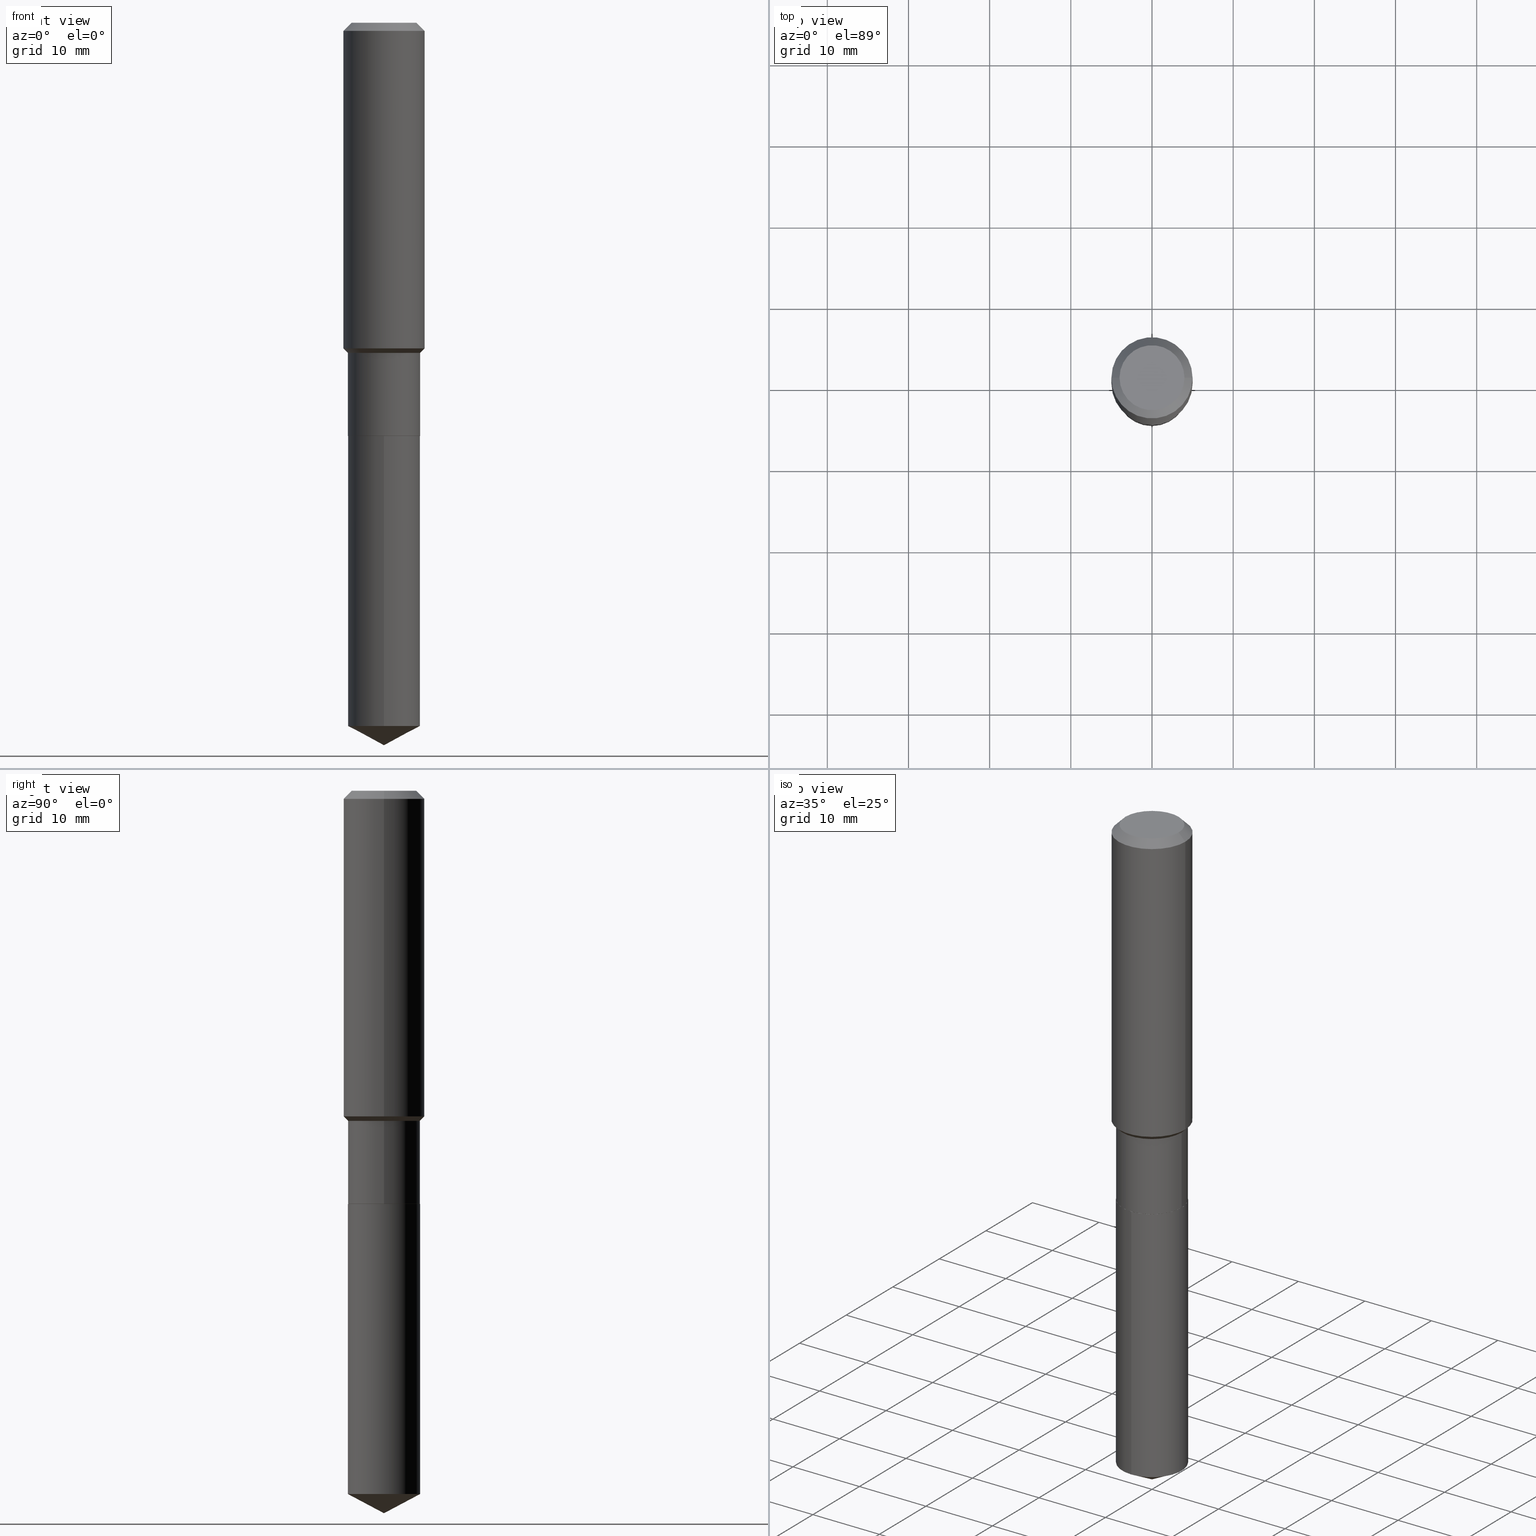
[diagram: canonical four-view strip — front | top / right | iso, engineering-drawing reading convention]
A machine part, canonical four-view strip (front | top / right | iso — engineering-drawing reading convention). The complete STEP part file that produces these views, byte-faithful:
ISO-10303-21;
HEADER;
FILE_DESCRIPTION (( 'STEP AP203' ),
    '1' );
FILE_NAME ('67659.STEP',
    '2024-04-25T08:35:35',
    ( '' ),
    ( '' ),
    'SwSTEP 2.0',
    'SolidWorks 2023',
    '' );
FILE_SCHEMA (( 'CONFIG_CONTROL_DESIGN' ));
ENDSEC;

DATA;
#1 = AXIS2_PLACEMENT_3D ( 'NONE', #430, #395, #51 ) ;
#2 = ORIENTED_EDGE ( 'NONE', *, *, #288, .T. ) ;
#3 = EDGE_CURVE ( 'NONE', #490, #112, #452, .T. ) ;
#4 = LINE ( 'NONE', #88, #188 ) ;
#5 = CC_DESIGN_PERSON_AND_ORGANIZATION_ASSIGNMENT ( #37, #360, ( #376 ) ) ;
#6 = CIRCLE ( 'NONE', #155, 0.1751999999999999946 ) ;
#7 = CIRCLE ( 'NONE', #177, 0.1968500000000002192 ) ;
#8 = DIRECTION ( 'NONE',  ( -6.982962677686265133E-15, -1.000000000000000000, 3.118547937972903315E-15 ) ) ;
#9 = SECURITY_CLASSIFICATION_LEVEL ( 'unclassified' ) ;
#10 = CARTESIAN_POINT ( 'NONE',  ( 4.899252206311301777E-29, -6.994833714238356601E-15, -2.003399999999999626 ) ) ;
#11 = EDGE_CURVE ( 'NONE', #361, #326, #307, .T. ) ;
#12 = ORIENTED_EDGE ( 'NONE', *, *, #75, .T. ) ;
#13 = CIRCLE ( 'NONE', #315, 0.1968500000000000250 ) ;
#14 = CARTESIAN_POINT ( 'NONE',  ( 1.244870873051744200E-15, 0.1751999999999929725, -2.003900000000000237 ) ) ;
#15 = APPROVAL_STATUS ( 'not_yet_approved' ) ;
#16 = DIRECTION ( 'NONE',  ( -2.445468806185136877E-29, 3.491481338843145188E-15, 1.000000000000000000 ) ) ;
#17 = EDGE_CURVE ( 'NONE', #228, #244, #417, .T. ) ;
#18 = DIRECTION ( 'NONE',  ( 1.000000000000000000, -6.982962677686265922E-15, 0.000000000000000000 ) ) ;
#19 = DIRECTION ( 'NONE',  ( 6.982962677686265922E-15, 1.000000000000000000, -3.491412619654568844E-15 ) ) ;
#20 = FACE_OUTER_BOUND ( 'NONE', #138, .T. ) ;
#21 = DIRECTION ( 'NONE',  ( -2.445516792538043674E-29, 3.491412619654569238E-15, 1.000000000000000000 ) ) ;
#22 = VERTEX_POINT ( 'NONE', #301 ) ;
#23 = CONICAL_SURFACE ( 'NONE', #345, 0.1746999999999999942, 0.7853981633973118326 ) ;
#24 = FACE_OUTER_BOUND ( 'NONE', #330, .T. ) ;
#25 = EDGE_LOOP ( 'NONE', ( #470, #385 ) ) ;
#26 = CARTESIAN_POINT ( 'NONE',  ( -8.771143855307868178E-28, 1.252234913657902623E-13, 35.86617874015747987 ) ) ;
#27 = DIRECTION ( 'NONE',  ( -6.982962677686265133E-15, -1.000000000000000000, 3.118547937972903315E-15 ) ) ;
#28 = FACE_OUTER_BOUND ( 'NONE', #258, .T. ) ;
#29 = CARTESIAN_POINT ( 'NONE',  ( 4.900474940714394579E-29, -6.996579454907778104E-15, -2.003899999999999793 ) ) ;
#30 = COORDINATED_UNIVERSAL_TIME_OFFSET ( 5, 0, .BEHIND. ) ;
#31 = LOCAL_TIME ( 4, 35, 35.00000000000000000, #191 ) ;
#32 = PERSON_AND_ORGANIZATION_ROLE ( 'creator' ) ;
#33 = APPROVAL_PERSON_ORGANIZATION ( #305, #275, #356 ) ;
#34 = CC_DESIGN_PERSON_AND_ORGANIZATION_ASSIGNMENT ( #384, #32, ( #115 ) ) ;
#35 = FACE_OUTER_BOUND ( 'NONE', #86, .T. ) ;
#36 = CYLINDRICAL_SURFACE ( 'NONE', #346, 0.1751999999999999946 ) ;
#37 = PERSON_AND_ORGANIZATION ( #290, #390 ) ;
#38 = ADVANCED_FACE ( 'NONE', ( #207 ), #415, .T. ) ;
#39 = AXIS2_PLACEMENT_3D ( 'NONE', #365, #261, #340 ) ;
#40 = APPROVAL_ROLE ( '' ) ;
#41 = ORIENTED_EDGE ( 'NONE', *, *, #65, .T. ) ;
#42 = ORIENTED_EDGE ( 'NONE', *, *, #11, .T. ) ;
#43 = DIRECTION ( 'NONE',  ( 1.000000000000000000, -6.982962677686267499E-15, 0.000000000000000000 ) ) ;
#44 = ADVANCED_FACE ( 'NONE', ( #472 ), #170, .F. ) ;
#45 = LOCAL_TIME ( 4, 35, 35.00000000000000000, #433 ) ;
#46 = ORIENTED_EDGE ( 'NONE', *, *, #250, .F. ) ;
#47 = VECTOR ( 'NONE', #131, 39.37007874015748143 ) ;
#48 = AXIS2_PLACEMENT_3D ( 'NONE', #325, #231, #118 ) ;
#49 = DIRECTION ( 'NONE',  ( -6.982962677686265133E-15, -1.000000000000000000, 3.118547937972903315E-15 ) ) ;
#50 = CARTESIAN_POINT ( 'NONE',  ( 1.244870873051778712E-15, 0.1751999999999880597, -3.410744507572909701 ) ) ;
#51 = DIRECTION ( 'NONE',  ( 1.000000000000000000, -6.982962677686265922E-15, 0.000000000000000000 ) ) ;
#52 = ORIENTED_EDGE ( 'NONE', *, *, #444, .F. ) ;
#53 = DIRECTION ( 'NONE',  ( 1.000000000000000000, -6.982962677686265922E-15, 4.876223630392693006E-29 ) ) ;
#54 = DIRECTION ( 'NONE',  ( -2.445516792538043674E-29, 3.491412619654569238E-15, 1.000000000000000000 ) ) ;
#55 = LINE ( 'NONE', #142, #193 ) ;
#56 = APPROVAL ( #15, 'UNSPECIFIED' ) ;
#57 = DIRECTION ( 'NONE',  ( 0.000000000000000000, 0.000000000000000000, 1.000000000000000000 ) ) ;
#58 = FACE_OUTER_BOUND ( 'NONE', #141, .T. ) ;
#59 = CARTESIAN_POINT ( 'NONE',  ( 0.1751999999999999391, -6.812927536484624885E-15, -1.600899999999999768 ) ) ;
#60 = LOCAL_TIME ( 4, 35, 35.00000000000000000, #30 ) ;
#61 = DIRECTION ( 'NONE',  ( -2.445516792538043674E-29, 3.491412619654569238E-15, 1.000000000000000000 ) ) ;
#62 = AXIS2_PLACEMENT_3D ( 'NONE', #153, #266, #18 ) ;
#63 = CONICAL_SURFACE ( 'NONE', #252, 0.1751999999999999391, 0.7853981633974473908 ) ;
#64 = CARTESIAN_POINT ( 'NONE',  ( 9.627810689950954155E-31, -1.374596203102556547E-16, -0.03937000000000029365 ) ) ;
#65 = EDGE_CURVE ( 'NONE', #276, #119, #370, .T. ) ;
#66 = DIRECTION ( 'NONE',  ( 1.000000000000000000, -6.982962677686266711E-15, 4.876176775795935793E-29 ) ) ;
#67 = ORIENTED_EDGE ( 'NONE', *, *, #213, .F. ) ;
#68 = ADVANCED_FACE ( 'NONE', ( #328 ), #272, .T. ) ;
#69 = PERSON_AND_ORGANIZATION ( #290, #390 ) ;
#70 = LINE ( 'NONE', #220, #353 ) ;
#71 = PRODUCT_DEFINITION_SHAPE ( 'NONE', 'NONE',  #115 ) ;
#72 = EDGE_LOOP ( 'NONE', ( #413, #12, #181, #67 ) ) ;
#73 = APPROVAL_PERSON_ORGANIZATION ( #318, #56, #40 ) ;
#74 = ADVANCED_BREP_SHAPE_REPRESENTATION ( '67659', ( #97, #274, #267 ), #332 ) ;
#75 = EDGE_CURVE ( 'NONE', #276, #132, #6, .T. ) ;
#76 = VECTOR ( 'NONE', #205, 39.37007874015748143 ) ;
#77 = ORIENTED_EDGE ( 'NONE', *, *, #117, .F. ) ;
#78 = AXIS2_PLACEMENT_3D ( 'NONE', #255, #54, #211 ) ;
#79 = AXIS2_PLACEMENT_3D ( 'NONE', #343, #21, #173 ) ;
#80 = DIMENSIONAL_EXPONENTS ( 1.000000000000000000, 0.000000000000000000, 0.000000000000000000, 0.000000000000000000, 0.000000000000000000, 0.000000000000000000, 0.000000000000000000 ) ;
#81 = EDGE_CURVE ( 'NONE', #253, #379, #135, .T. ) ;
#82 = DIRECTION ( 'NONE',  ( -1.000000000000000000, 6.982962677686265922E-15, -4.876176775795935793E-29 ) ) ;
#83 = LINE ( 'NONE', #237, #103 ) ;
#84 = DIRECTION ( 'NONE',  ( 1.000000000000000000, -6.982962677686265922E-15, 0.000000000000000000 ) ) ;
#85 = CONICAL_SURFACE ( 'NONE', #62, 0.1746999999999999942, 0.7853981633973118326 ) ;
#86 = EDGE_LOOP ( 'NONE', ( #201, #106 ) ) ;
#87 = CONICAL_SURFACE ( 'NONE', #358, 0.1968500000000000250, 0.7853981633974447263 ) ;
#88 = CARTESIAN_POINT ( 'NONE',  ( 0.1751999999999999391, -6.812927536484624885E-15, -1.600899999999999768 ) ) ;
#89 = DIRECTION ( 'NONE',  ( -2.445468806185136597E-29, 3.491481338843145583E-15, 1.000000000000000000 ) ) ;
#90 = ORIENTED_EDGE ( 'NONE', *, *, #349, .F. ) ;
#91 = DIRECTION ( 'NONE',  ( 1.000000000000000000, -6.982962677686265133E-15, 0.000000000000000000 ) ) ;
#92 = EDGE_LOOP ( 'NONE', ( #107, #223, #367, #287 ) ) ;
#93 = DIRECTION ( 'NONE',  ( -2.445468806185136597E-29, 3.491481338843145583E-15, 1.000000000000000000 ) ) ;
#94 = CARTESIAN_POINT ( 'NONE',  ( 0.1752000000000000224, -8.218248775368990478E-15, -2.003399999999999626 ) ) ;
#95 = CLOSED_SHELL ( 'NONE', ( #471, #256, #68, #38, #303 ) ) ;
#96 = DIRECTION ( 'NONE',  ( -2.438088387897960049E-29, 3.491481338843145188E-15, 1.000000000000000000 ) ) ;
#97 = MANIFOLD_SOLID_BREP ( 'Body-Move/Copy2[1]', #95 ) ;
#98 = CARTESIAN_POINT ( 'NONE',  ( -0.1574800000000000089, 1.168406772637159618E-15, 3.855188123707939751E-18 ) ) ;
#99 = CARTESIAN_POINT ( 'NONE',  ( 0.1968500000000000250, -1.512055823412797189E-15, -0.03937000000000029365 ) ) ;
#100 = ADVANCED_FACE ( 'NONE', ( #20 ), #401, .T. ) ;
#101 = EDGE_LOOP ( 'NONE', ( #77, #323, #289, #459 ) ) ;
#102 = APPROVAL_ROLE ( '' ) ;
#103 = VECTOR ( 'NONE', #464, 39.37007874015748854 ) ;
#104 = LINE ( 'NONE', #208, #392 ) ;
#105 = ADVANCED_FACE ( 'NONE', ( #58 ), #23, .T. ) ;
#106 = ORIENTED_EDGE ( 'NONE', *, *, #217, .T. ) ;
#107 = ORIENTED_EDGE ( 'NONE', *, *, #17, .T. ) ;
#108 = ORIENTED_EDGE ( 'NONE', *, *, #158, .F. ) ;
#109 = UNCERTAINTY_MEASURE_WITH_UNIT (LENGTH_MEASURE( 1.000000000000000082E-05 ), #294, 'distance_accuracy_value', 'NONE');
#110 = VECTOR ( 'NONE', #218, 39.37007874015748143 ) ;
#111 = CIRCLE ( 'NONE', #48, 0.1751999999999999946 ) ;
#112 = VERTEX_POINT ( 'NONE', #187 ) ;
#113 = ADVANCED_FACE ( 'NONE', ( #28 ), #85, .T. ) ;
#114 = DIRECTION ( 'NONE',  ( -2.445468806185136597E-29, 3.491481338843145583E-15, 1.000000000000000000 ) ) ;
#115 = PRODUCT_DEFINITION ( 'UNKNOWN', '', #376, #347 ) ;
#116 = AXIS2_PLACEMENT_3D ( 'NONE', #121, #240, #91 ) ;
#117 = EDGE_CURVE ( 'NONE', #244, #350, #375, .T. ) ;
#118 = DIRECTION ( 'NONE',  ( -6.982962677686265133E-15, -1.000000000000000000, 3.118547937972903315E-15 ) ) ;
#119 = VERTEX_POINT ( 'NONE', #254 ) ;
#120 = DIRECTION ( 'NONE',  ( 1.000000000000000000, -6.982962677686265133E-15, 4.876176775795935793E-29 ) ) ;
#121 = CARTESIAN_POINT ( 'NONE',  ( 3.914951011821784364E-29, -5.589512475353991008E-15, -1.600899999999999768 ) ) ;
#122 = ORIENTED_EDGE ( 'NONE', *, *, #250, .T. ) ;
#123 = DIRECTION ( 'NONE',  ( -2.445516792538043674E-29, 3.491412619654569238E-15, 1.000000000000000000 ) ) ;
#124 = CIRCLE ( 'NONE', #378, 0.1751999999999999391 ) ;
#125 = ORIENTED_EDGE ( 'NONE', *, *, #336, .F. ) ;
#126 = LINE ( 'NONE', #434, #405 ) ;
#127 = ORIENTED_EDGE ( 'NONE', *, *, #387, .F. ) ;
#128 = VERTEX_POINT ( 'NONE', #245 ) ;
#129 = CARTESIAN_POINT ( 'NONE',  ( 3.862006612167875814E-29, -5.513921904368036353E-15, -1.579249999999999599 ) ) ;
#130 = CC_DESIGN_PERSON_AND_ORGANIZATION_ASSIGNMENT ( #176, #478, ( #352 ) ) ;
#131 = DIRECTION ( 'NONE',  ( -0.7071067811865469066, 7.493145998870352582E-15, 0.7071067811865481278 ) ) ;
#132 = VERTEX_POINT ( 'NONE', #161 ) ;
#133 = CARTESIAN_POINT ( 'NONE',  ( -0.1752000000000000224, -5.047302221744479303E-15, -2.003399999999999626 ) ) ;
#134 = EDGE_LOOP ( 'NONE', ( #422, #396, #363 ) ) ;
#135 = CIRCLE ( 'NONE', #421, 0.1574800000000000089 ) ;
#136 = CIRCLE ( 'NONE', #79, 0.1751999999999999946 ) ;
#137 = EDGE_CURVE ( 'NONE', #112, #326, #126, .T. ) ;
#138 = EDGE_LOOP ( 'NONE', ( #90, #474, #206, #127 ) ) ;
#139 = PERSON_AND_ORGANIZATION_ROLE ( 'classification_officer' ) ;
#140 = CARTESIAN_POINT ( 'NONE',  ( 4.900474940714395139E-29, -6.996579454907778893E-15, -2.003899999999999793 ) ) ;
#141 = EDGE_LOOP ( 'NONE', ( #143, #440, #393, #456 ) ) ;
#142 = CARTESIAN_POINT ( 'NONE',  ( 0.1968500000000000250, -1.487948651171581601E-15, -0.03937000000000029365 ) ) ;
#143 = ORIENTED_EDGE ( 'NONE', *, *, #3, .T. ) ;
#144 = DIRECTION ( 'NONE',  ( 2.445468806185136597E-29, -3.491481338843145583E-15, -1.000000000000000000 ) ) ;
#145 = EDGE_CURVE ( 'NONE', #228, #22, #4, .T. ) ;
#146 = LOCAL_TIME ( 4, 35, 35.00000000000000000, #299 ) ;
#147 = VECTOR ( 'NONE', #389, 39.37007874015748143 ) ;
#148 = CARTESIAN_POINT ( 'NONE',  ( 3.914951011821784364E-29, -5.589512475353991008E-15, -1.600899999999999768 ) ) ;
#149 = DIRECTION ( 'NONE',  ( -2.445516792538043674E-29, 3.491412619654569238E-15, 1.000000000000000000 ) ) ;
#150 = APPLICATION_PROTOCOL_DEFINITION ( 'international standard', 'config_control_design', 1994, #355 ) ;
#151 = EDGE_LOOP ( 'NONE', ( #324, #41, #404, #403 ) ) ;
#152 = CC_DESIGN_DATE_AND_TIME_ASSIGNMENT ( #160, #438, ( #174 ) ) ;
#153 = CARTESIAN_POINT ( 'NONE',  ( 4.900474940714395139E-29, -6.996579454907778893E-15, -2.003899999999999793 ) ) ;
#154 = APPROVAL_PERSON_ORGANIZATION ( #341, #190, #102 ) ;
#155 = AXIS2_PLACEMENT_3D ( 'NONE', #466, #475, #8 ) ;
#156 = PLANE ( 'NONE',  #282 ) ;
#157 = AXIS2_PLACEMENT_3D ( 'NONE', #264, #306, #334 ) ;
#158 = EDGE_CURVE ( 'NONE', #361, #228, #359, .T. ) ;
#159 = DIRECTION ( 'NONE',  ( 1.000000000000000000, -6.982962677686267499E-15, 0.000000000000000000 ) ) ;
#160 = DATE_AND_TIME ( #285, #146 ) ;
#161 = CARTESIAN_POINT ( 'NONE',  ( -1.223415061130550258E-15, -0.1752000000000119018, -3.410744507572908368 ) ) ;
#162 = VERTEX_POINT ( 'NONE', #168 ) ;
#163 = DIRECTION ( 'NONE',  ( -2.445468806185136597E-29, 3.491481338843145583E-15, 1.000000000000000000 ) ) ;
#164 = CARTESIAN_POINT ( 'NONE',  ( 0.1751999999999999946, -1.223415061130633680E-15, 8.543061711194479319E-30 ) ) ;
#165 = AXIS2_PLACEMENT_3D ( 'NONE', #260, #61, #49 ) ;
#166 = ORIENTED_EDGE ( 'NONE', *, *, #137, .F. ) ;
#167 = DIRECTION ( 'NONE',  ( 1.000000000000000000, -6.982962677686265922E-15, 0.000000000000000000 ) ) ;
#168 = CARTESIAN_POINT ( 'NONE',  ( -0.1968500000000000250, -1.426987386995387785E-15, -0.03937000000000029365 ) ) ;
#169 = CC_DESIGN_DATE_AND_TIME_ASSIGNMENT ( #180, #482, ( #115 ) ) ;
#170 = PLANE ( 'NONE',  #268 ) ;
#171 = FACE_OUTER_BOUND ( 'NONE', #92, .T. ) ;
#172 = EDGE_CURVE ( 'NONE', #432, #119, #111, .T. ) ;
#173 = DIRECTION ( 'NONE',  ( -6.982962677686265133E-15, -1.000000000000000000, 3.118547937972903315E-15 ) ) ;
#174 = SECURITY_CLASSIFICATION ( '', '', #9 ) ;
#175 =( NAMED_UNIT ( * ) PLANE_ANGLE_UNIT ( ) SI_UNIT ( $, .RADIAN. ) );
#176 = PERSON_AND_ORGANIZATION ( #290, #390 ) ;
#177 = AXIS2_PLACEMENT_3D ( 'NONE', #204, #469, #394 ) ;
#178 = CARTESIAN_POINT ( 'NONE',  ( 9.627810689950954155E-31, -1.374596203102556547E-16, -0.03937000000000029365 ) ) ;
#179 = CARTESIAN_POINT ( 'NONE',  ( -1.223415061130584771E-15, -0.1752000000000069890, -2.003899999999998904 ) ) ;
#180 = DATE_AND_TIME ( #348, #31 ) ;
#181 = ORIENTED_EDGE ( 'NONE', *, *, #227, .T. ) ;
#182 = EDGE_CURVE ( 'NONE', #22, #350, #7, .T. ) ;
#183 = CYLINDRICAL_SURFACE ( 'NONE', #157, 0.1751999999999999946 ) ;
#184 = APPLICATION_PROTOCOL_DEFINITION ( 'international standard', 'config_control_design', 1994, #309 ) ;
#185 = FACE_OUTER_BOUND ( 'NONE', #247, .T. ) ;
#186 = CALENDAR_DATE ( 2024, 25, 4 ) ;
#187 = CARTESIAN_POINT ( 'NONE',  ( -0.1746999999999999942, -5.752612068360772906E-15, -2.003899999999999793 ) ) ;
#188 = VECTOR ( 'NONE', #460, 39.37007874015748143 ) ;
#189 = AXIS2_PLACEMENT_3D ( 'NONE', #26, #214, #372 ) ;
#190 = APPROVAL ( #311, 'UNSPECIFIED' ) ;
#191 = COORDINATED_UNIVERSAL_TIME_OFFSET ( 5, 0, .BEHIND. ) ;
#192 = ADVANCED_FACE ( 'NONE', ( #35 ), #156, .F. ) ;
#193 = VECTOR ( 'NONE', #302, 39.37007874015748143 ) ;
#194 = ADVANCED_FACE ( 'NONE', ( #388 ), #36, .T. ) ;
#195 = CARTESIAN_POINT ( 'NONE',  ( 0.000000000000000000, 0.000000000000000000, 0.000000000000000000 ) ) ;
#196 = PERSON_AND_ORGANIZATION_ROLE ( 'creator' ) ;
#197 = CIRCLE ( 'NONE', #1, 0.1968500000000000250 ) ;
#198 = CALENDAR_DATE ( 2024, 25, 4 ) ;
#199 = CARTESIAN_POINT ( 'NONE',  ( 0.1968500000000001082, -1.374596203102542397E-15, 9.598753983154305062E-30 ) ) ;
#200 = DIRECTION ( 'NONE',  ( 1.000000000000000000, -6.982962677686265133E-15, 0.000000000000000000 ) ) ;
#201 = ORIENTED_EDGE ( 'NONE', *, *, #81, .T. ) ;
#202 = EDGE_CURVE ( 'NONE', #22, #296, #280, .T. ) ;
#203 = APPROVAL_DATE_TIME ( #397, #56 ) ;
#204 = CARTESIAN_POINT ( 'NONE',  ( 3.862006612167875814E-29, -5.513921904368036353E-15, -1.579249999999999599 ) ) ;
#205 = DIRECTION ( 'NONE',  ( 0.7071067811864509833, -2.468850131081245741E-15, 0.7071067811866440511 ) ) ;
#206 = ORIENTED_EDGE ( 'NONE', *, *, #202, .T. ) ;
#207 = FACE_OUTER_BOUND ( 'NONE', #72, .T. ) ;
#208 = CARTESIAN_POINT ( 'NONE',  ( -1.223415061130584771E-15, -0.1752000000000069890, -2.003899999999998904 ) ) ;
#209 = EDGE_CURVE ( 'NONE', #128, #276, #83, .T. ) ;
#210 = DIRECTION ( 'NONE',  ( -2.445468806185136597E-29, 3.491481338843145583E-15, 1.000000000000000000 ) ) ;
#211 = DIRECTION ( 'NONE',  ( -6.982962677686268288E-15, -1.000000000000000000, 3.541896320645563630E-15 ) ) ;
#212 = LINE ( 'NONE', #234, #147 ) ;
#213 = EDGE_CURVE ( 'NONE', #119, #432, #224, .T. ) ;
#214 = DIRECTION ( 'NONE',  ( -2.445516792538043674E-29, 3.491412619654569238E-15, 1.000000000000000000 ) ) ;
#215 = MECHANICAL_CONTEXT ( 'NONE', #355, 'mechanical' ) ;
#216 = CIRCLE ( 'NONE', #273, 0.1752000000000000224 ) ;
#217 = EDGE_CURVE ( 'NONE', #379, #253, #238, .T. ) ;
#218 = DIRECTION ( 'NONE',  ( -2.445516792538043674E-29, 3.491412619654568844E-15, 1.000000000000000000 ) ) ;
#219 = DIRECTION ( 'NONE',  ( 2.445468806185136597E-29, -3.491481338843145583E-15, -1.000000000000000000 ) ) ;
#220 = CARTESIAN_POINT ( 'NONE',  ( -0.1751999999999999946, 1.244870873051695487E-15, -8.617974278126594374E-30 ) ) ;
#221 = FACE_OUTER_BOUND ( 'NONE', #463, .T. ) ;
#222 = APPROVAL_DATE_TIME ( #455, #190 ) ;
#223 = ORIENTED_EDGE ( 'NONE', *, *, #117, .T. ) ;
#224 = CIRCLE ( 'NONE', #425, 0.1751999999999999946 ) ;
#225 = AXIS2_PLACEMENT_3D ( 'NONE', #331, #163, #167 ) ;
#226 = AXIS2_PLACEMENT_3D ( 'NONE', #129, #442, #84 ) ;
#227 = EDGE_CURVE ( 'NONE', #132, #432, #104, .T. ) ;
#228 = VERTEX_POINT ( 'NONE', #59 ) ;
#229 = EDGE_CURVE ( 'NONE', #132, #276, #136, .T. ) ;
#230 = AXIS2_PLACEMENT_3D ( 'NONE', #304, #149, #27 ) ;
#231 = DIRECTION ( 'NONE',  ( -2.445516792538043674E-29, 3.491412619654569238E-15, 1.000000000000000000 ) ) ;
#232 = CC_DESIGN_PERSON_AND_ORGANIZATION_ASSIGNMENT ( #69, #139, ( #174 ) ) ;
#233 = APPROVAL_DATE_TIME ( #402, #275 ) ;
#234 = CARTESIAN_POINT ( 'NONE',  ( -0.1968500000000001082, 1.398703375343757985E-15, -9.682923725166787881E-30 ) ) ;
#235 = CC_DESIGN_APPROVAL ( #190, ( #115 ) ) ;
#236 = AXIS2_PLACEMENT_3D ( 'NONE', #368, #93, #43 ) ;
#237 = CARTESIAN_POINT ( 'NONE',  ( 8.568847975790850116E-29, -1.223356067800764483E-14, -3.503899999999999793 ) ) ;
#238 = CIRCLE ( 'NONE', #39, 0.1574800000000000089 ) ;
#239 = ADVANCED_FACE ( 'NONE', ( #257 ), #183, .T. ) ;
#240 = DIRECTION ( 'NONE',  ( -2.445468806185136597E-29, 3.491481338843145583E-15, 1.000000000000000000 ) ) ;
#241 = ORIENTED_EDGE ( 'NONE', *, *, #229, .F. ) ;
#242 = CARTESIAN_POINT ( 'NONE',  ( 4.900474940714394579E-29, -6.996579454907778104E-15, -2.003899999999999793 ) ) ;
#243 = DIRECTION ( 'NONE',  ( 1.000000000000000000, -6.982962677686265922E-15, 0.000000000000000000 ) ) ;
#244 = VERTEX_POINT ( 'NONE', #298 ) ;
#245 = CARTESIAN_POINT ( 'NONE',  ( 8.568846289374051475E-29, -1.223356067800764483E-14, -3.503899999999999793 ) ) ;
#246 = CALENDAR_DATE ( 2024, 25, 4 ) ;
#247 = EDGE_LOOP ( 'NONE', ( #446, #409, #122, #314 ) ) ;
#248 = DIRECTION ( 'NONE',  ( -2.445468806185136597E-29, 3.491481338843145583E-15, 1.000000000000000000 ) ) ;
#249 = DIRECTION ( 'NONE',  ( 1.000000000000000000, -6.982962677686265133E-15, 0.000000000000000000 ) ) ;
#250 = EDGE_CURVE ( 'NONE', #296, #162, #13, .T. ) ;
#251 = DIRECTION ( 'NONE',  ( -2.445468806185136597E-29, 3.491481338843145583E-15, 1.000000000000000000 ) ) ;
#252 = AXIS2_PLACEMENT_3D ( 'NONE', #148, #383, #473 ) ;
#253 = VERTEX_POINT ( 'NONE', #98 ) ;
#254 = CARTESIAN_POINT ( 'NONE',  ( 1.244870873051778910E-15, 0.1751999999999929725, -2.003900000000000237 ) ) ;
#255 = CARTESIAN_POINT ( 'NONE',  ( -8.771143855307868178E-28, 1.252234913657902623E-13, 35.86617874015747987 ) ) ;
#256 = ADVANCED_FACE ( 'NONE', ( #486 ), #295, .T. ) ;
#257 = FACE_OUTER_BOUND ( 'NONE', #485, .T. ) ;
#258 = EDGE_LOOP ( 'NONE', ( #166, #271, #483, #435 ) ) ;
#259 = CARTESIAN_POINT ( 'NONE',  ( 0.000000000000000000, 0.000000000000000000, 0.000000000000000000 ) ) ;
#260 = CARTESIAN_POINT ( 'NONE',  ( 4.900474940714394579E-29, -6.996579454907778104E-15, -2.003899999999999793 ) ) ;
#261 = DIRECTION ( 'NONE',  ( -2.445468806185136597E-29, 3.491481338843145583E-15, 1.000000000000000000 ) ) ;
#262 = DIRECTION ( 'NONE',  ( 2.445516792538043394E-29, -3.491412619654568844E-15, -1.000000000000000000 ) ) ;
#263 = AXIS2_PLACEMENT_3D ( 'NONE', #447, #419, #66 ) ;
#264 = CARTESIAN_POINT ( 'NONE',  ( 0.000000000000000000, 0.000000000000000000, 0.000000000000000000 ) ) ;
#265 =( NAMED_UNIT ( * ) SI_UNIT ( $, .STERADIAN. ) SOLID_ANGLE_UNIT ( ) );
#266 = DIRECTION ( 'NONE',  ( -2.445468806185136597E-29, 3.491481338843145583E-15, 1.000000000000000000 ) ) ;
#267 = AXIS2_PLACEMENT_3D ( 'NONE', #373, #57, #489 ) ;
#268 = AXIS2_PLACEMENT_3D ( 'NONE', #410, #96, #448 ) ;
#269 = AXIS2_PLACEMENT_3D ( 'NONE', #178, #144, #337 ) ;
#270 = COORDINATED_UNIVERSAL_TIME_OFFSET ( 5, 0, .BEHIND. ) ;
#271 = ORIENTED_EDGE ( 'NONE', *, *, #412, .T. ) ;
#272 = CONICAL_SURFACE ( 'NONE', #78, 74.04434902938348273, 1.082104136236486269 ) ;
#273 = AXIS2_PLACEMENT_3D ( 'NONE', #10, #251, #159 ) ;
#274 = MANIFOLD_SOLID_BREP ( 'Body-Move/Copy2[2]', #487 ) ;
#275 = APPROVAL ( #451, 'UNSPECIFIED' ) ;
#276 = VERTEX_POINT ( 'NONE', #50 ) ;
#277 = CARTESIAN_POINT ( 'NONE',  ( -4.713871149261283817E-47, 6.730158695841841775E-33, 1.927594061857935365E-18 ) ) ;
#278 = ADVANCED_FACE ( 'NONE', ( #477 ), #371, .T. ) ;
#279 = CARTESIAN_POINT ( 'NONE',  ( -9.427742298522567634E-47, 1.346031739168368355E-32, 3.855188123715870730E-18 ) ) ;
#280 = LINE ( 'NONE', #199, #308 ) ;
#281 = ORIENTED_EDGE ( 'NONE', *, *, #158, .T. ) ;
#282 = AXIS2_PLACEMENT_3D ( 'NONE', #277, #428, #82 ) ;
#283 = DIRECTION ( 'NONE',  ( -6.982962677686265133E-15, -1.000000000000000000, 3.118547937972903315E-15 ) ) ;
#284 = ORIENTED_EDGE ( 'NONE', *, *, #81, .F. ) ;
#285 = CALENDAR_DATE ( 2024, 25, 4 ) ;
#286 = CARTESIAN_POINT ( 'NONE',  ( 3.914951011821784364E-29, -5.589512475353991008E-15, -1.600899999999999768 ) ) ;
#287 = ORIENTED_EDGE ( 'NONE', *, *, #145, .F. ) ;
#288 = EDGE_CURVE ( 'NONE', #253, #162, #484, .T. ) ;
#289 = ORIENTED_EDGE ( 'NONE', *, *, #145, .T. ) ;
#290 = PERSON ( 'UNSPECIFIED', 'UNSPECIFIED', 'UNSPECIFIED', ('UNSPECIFIED'), ('UNSPECIFIED'), ('UNSPECIFIED') ) ;
#291 = DIRECTION ( 'NONE',  ( -2.445468806185136597E-29, 3.491481338843145583E-15, 1.000000000000000000 ) ) ;
#292 = CC_DESIGN_APPROVAL ( #56, ( #174 ) ) ;
#293 = DIRECTION ( 'NONE',  ( -1.000000000000000000, 6.982962677686265922E-15, 0.000000000000000000 ) ) ;
#294 =( CONVERSION_BASED_UNIT ( 'INCH', #300 ) LENGTH_UNIT ( ) NAMED_UNIT ( #80 ) );
#295 = CONICAL_SURFACE ( 'NONE', #189, 74.04434902938348273, 1.082104136236486269 ) ;
#296 = VERTEX_POINT ( 'NONE', #99 ) ;
#297 = ORIENTED_EDGE ( 'NONE', *, *, #209, .T. ) ;
#298 = CARTESIAN_POINT ( 'NONE',  ( -0.1751999999999999391, -5.047302221744479303E-15, -1.600899999999999768 ) ) ;
#299 = COORDINATED_UNIVERSAL_TIME_OFFSET ( 5, 0, .BEHIND. ) ;
#300 = LENGTH_MEASURE_WITH_UNIT ( LENGTH_MEASURE( 0.02539999999999999897 ), #420 );
#301 = CARTESIAN_POINT ( 'NONE',  ( 0.1968500000000002192, -6.888518107470578750E-15, -1.579249999999999599 ) ) ;
#302 = DIRECTION ( 'NONE',  ( 0.7071067811865450192, -7.319954787623246579E-15, -0.7071067811865500152 ) ) ;
#303 = ADVANCED_FACE ( 'NONE', ( #221 ), #377, .F. ) ;
#304 = CARTESIAN_POINT ( 'NONE',  ( 4.900474940714394579E-29, -6.996579454907778104E-15, -2.003899999999999793 ) ) ;
#305 = PERSON_AND_ORGANIZATION ( #290, #390 ) ;
#306 = DIRECTION ( 'NONE',  ( -2.445468806185136597E-29, 3.491481338843145583E-15, 1.000000000000000000 ) ) ;
#307 = CIRCLE ( 'NONE', #236, 0.1752000000000000224 ) ;
#308 = VECTOR ( 'NONE', #429, 39.37007874015748143 ) ;
#309 = APPLICATION_CONTEXT ( 'configuration controlled 3d designs of mechanical parts and assemblies' ) ;
#310 = CARTESIAN_POINT ( 'NONE',  ( -0.1968500000000000250, 1.237136582792286225E-15, -0.03937000000000029365 ) ) ;
#311 = APPROVAL_STATUS ( 'not_yet_approved' ) ;
#312 = ADVANCED_FACE ( 'NONE', ( #24 ), #418, .T. ) ;
#313 = VECTOR ( 'NONE', #481, 39.37007874015748854 ) ;
#314 = ORIENTED_EDGE ( 'NONE', *, *, #288, .F. ) ;
#315 = AXIS2_PLACEMENT_3D ( 'NONE', #449, #407, #411 ) ;
#316 = LINE ( 'NONE', #399, #76 ) ;
#317 = EDGE_CURVE ( 'NONE', #128, #132, #416, .T. ) ;
#318 = PERSON_AND_ORGANIZATION ( #290, #390 ) ;
#319 = ORIENTED_EDGE ( 'NONE', *, *, #317, .F. ) ;
#320 = ORIENTED_EDGE ( 'NONE', *, *, #354, .F. ) ;
#321 = DIRECTION ( 'NONE',  ( 1.000000000000000000, -6.982962677686265922E-15, 0.000000000000000000 ) ) ;
#322 = ADVANCED_FACE ( 'NONE', ( #171 ), #63, .T. ) ;
#323 = ORIENTED_EDGE ( 'NONE', *, *, #354, .T. ) ;
#324 = ORIENTED_EDGE ( 'NONE', *, *, #229, .T. ) ;
#325 = CARTESIAN_POINT ( 'NONE',  ( 4.900474940714394579E-29, -6.996579454907778104E-15, -2.003899999999999793 ) ) ;
#326 = VERTEX_POINT ( 'NONE', #133 ) ;
#327 = CARTESIAN_POINT ( 'NONE',  ( -0.1751999999999999391, -4.344641602302296112E-15, -1.600899999999999768 ) ) ;
#328 = FACE_OUTER_BOUND ( 'NONE', #134, .T. ) ;
#329 = CARTESIAN_POINT ( 'NONE',  ( 8.568653969668870386E-29, -1.223383609077162186E-14, -3.503899999999999793 ) ) ;
#330 = EDGE_LOOP ( 'NONE', ( #125, #284, #2, #398 ) ) ;
#331 = CARTESIAN_POINT ( 'NONE',  ( 4.900474940714395139E-29, -6.996579454907778893E-15, -2.003899999999999793 ) ) ;
#332 =( GEOMETRIC_REPRESENTATION_CONTEXT ( 3 ) GLOBAL_UNCERTAINTY_ASSIGNED_CONTEXT ( ( #109 ) ) GLOBAL_UNIT_ASSIGNED_CONTEXT ( ( #294, #175, #265 ) ) REPRESENTATION_CONTEXT ( 'NONE', 'WORKASPACE' ) );
#333 = ORIENTED_EDGE ( 'NONE', *, *, #374, .T. ) ;
#334 = DIRECTION ( 'NONE',  ( 1.000000000000000000, -6.982962677686265133E-15, 4.876176775795935793E-29 ) ) ;
#335 = CONICAL_SURFACE ( 'NONE', #116, 0.1751999999999999391, 0.7853981633974473908 ) ;
#336 = EDGE_CURVE ( 'NONE', #379, #296, #55, .T. ) ;
#337 = DIRECTION ( 'NONE',  ( -1.000000000000000000, 6.982962677686265922E-15, 0.000000000000000000 ) ) ;
#338 = DIRECTION ( 'NONE',  ( -2.445468806185136877E-29, 3.491481338843145188E-15, 1.000000000000000000 ) ) ;
#339 = ORIENTED_EDGE ( 'NONE', *, *, #172, .T. ) ;
#340 = DIRECTION ( 'NONE',  ( 1.000000000000000000, -6.982962677686265922E-15, 4.876223630392693006E-29 ) ) ;
#341 = PERSON_AND_ORGANIZATION ( #290, #390 ) ;
#342 = ORIENTED_EDGE ( 'NONE', *, *, #444, .T. ) ;
#343 = CARTESIAN_POINT ( 'NONE',  ( 8.340936808473858960E-29, -1.190845412253955360E-14, -3.410744507572909257 ) ) ;
#344 = ADVANCED_FACE ( 'NONE', ( #185 ), #87, .T. ) ;
#345 = AXIS2_PLACEMENT_3D ( 'NONE', #140, #436, #321 ) ;
#346 = AXIS2_PLACEMENT_3D ( 'NONE', #195, #462, #120 ) ;
#347 = DESIGN_CONTEXT ( 'detailed design', #309, 'design' ) ;
#348 = CALENDAR_DATE ( 2024, 25, 4 ) ;
#349 = EDGE_CURVE ( 'NONE', #350, #162, #212, .T. ) ;
#350 = VERTEX_POINT ( 'NONE', #366 ) ;
#351 = ORIENTED_EDGE ( 'NONE', *, *, #349, .T. ) ;
#352 = PRODUCT ( '67659', '67659', '', ( #215 ) ) ;
#353 = VECTOR ( 'NONE', #338, 39.37007874015748143 ) ;
#354 = EDGE_CURVE ( 'NONE', #244, #228, #124, .T. ) ;
#355 = APPLICATION_CONTEXT ( 'configuration controlled 3d designs of mechanical parts and assemblies' ) ;
#356 = APPROVAL_ROLE ( '' ) ;
#357 = EDGE_CURVE ( 'NONE', #350, #22, #423, .T. ) ;
#358 = AXIS2_PLACEMENT_3D ( 'NONE', #64, #219, #293 ) ;
#359 = LINE ( 'NONE', #164, #488 ) ;
#360 = PERSON_AND_ORGANIZATION_ROLE ( 'design_supplier' ) ;
#361 = VERTEX_POINT ( 'NONE', #94 ) ;
#362 = CARTESIAN_POINT ( 'NONE',  ( 4.900474940714395139E-29, -6.996579454907778893E-15, -2.003899999999999793 ) ) ;
#363 = ORIENTED_EDGE ( 'NONE', *, *, #75, .F. ) ;
#364 = SHAPE_DEFINITION_REPRESENTATION ( #71, #74 ) ;
#365 = CARTESIAN_POINT ( 'NONE',  ( -9.427742298522567634E-47, 1.346031739168368355E-32, 3.855188123715870730E-18 ) ) ;
#366 = CARTESIAN_POINT ( 'NONE',  ( -0.1968500000000002192, -4.115218529024277777E-15, -1.579249999999999599 ) ) ;
#367 = ORIENTED_EDGE ( 'NONE', *, *, #182, .F. ) ;
#368 = CARTESIAN_POINT ( 'NONE',  ( 4.899252206311301777E-29, -6.994833714238356601E-15, -2.003399999999999626 ) ) ;
#369 = ORIENTED_EDGE ( 'NONE', *, *, #213, .T. ) ;
#370 = LINE ( 'NONE', #14, #110 ) ;
#371 = CYLINDRICAL_SURFACE ( 'NONE', #263, 0.1968500000000001082 ) ;
#372 = DIRECTION ( 'NONE',  ( -6.982962677686268288E-15, -1.000000000000000000, 3.541896320645563630E-15 ) ) ;
#373 = CARTESIAN_POINT ( 'NONE',  ( 0.000000000000000000, 0.000000000000000000, 0.000000000000000000 ) ) ;
#374 = EDGE_CURVE ( 'NONE', #326, #361, #216, .T. ) ;
#375 = LINE ( 'NONE', #327, #47 ) ;
#376 = PRODUCT_DEFINITION_FORMATION_WITH_SPECIFIED_SOURCE ( 'ANY', '', #352, .NOT_KNOWN. ) ;
#377 = PLANE ( 'NONE',  #443 ) ;
#378 = AXIS2_PLACEMENT_3D ( 'NONE', #286, #89, #200 ) ;
#379 = VERTEX_POINT ( 'NONE', #408 ) ;
#380 = DIRECTION ( 'NONE',  ( -0.7071067811865450192, 2.468850131082230634E-15, -0.7071067811865500152 ) ) ;
#381 = CYLINDRICAL_SURFACE ( 'NONE', #230, 0.1751999999999999946 ) ;
#382 = ADVANCED_FACE ( 'NONE', ( #467 ), #335, .T. ) ;
#383 = DIRECTION ( 'NONE',  ( -2.445468806185136597E-29, 3.491481338843145583E-15, 1.000000000000000000 ) ) ;
#384 = PERSON_AND_ORGANIZATION ( #290, #390 ) ;
#385 = ORIENTED_EDGE ( 'NONE', *, *, #412, .F. ) ;
#386 = CC_DESIGN_APPROVAL ( #275, ( #376 ) ) ;
#387 = EDGE_CURVE ( 'NONE', #162, #296, #197, .T. ) ;
#388 = FACE_OUTER_BOUND ( 'NONE', #427, .T. ) ;
#389 = DIRECTION ( 'NONE',  ( -2.445468806185136877E-29, 3.491481338843145188E-15, 1.000000000000000000 ) ) ;
#390 = ORGANIZATION ( 'UNSPECIFIED', 'UNSPECIFIED', '' ) ;
#391 = AXIS2_PLACEMENT_3D ( 'NONE', #259, #248, #480 ) ;
#392 = VECTOR ( 'NONE', #414, 39.37007874015748143 ) ;
#393 = ORIENTED_EDGE ( 'NONE', *, *, #11, .F. ) ;
#394 = DIRECTION ( 'NONE',  ( 1.000000000000000000, -6.982962677686265922E-15, 0.000000000000000000 ) ) ;
#395 = DIRECTION ( 'NONE',  ( -2.445468806185136597E-29, 3.491481338843145583E-15, 1.000000000000000000 ) ) ;
#396 = ORIENTED_EDGE ( 'NONE', *, *, #317, .T. ) ;
#397 = DATE_AND_TIME ( #198, #45 ) ;
#398 = ORIENTED_EDGE ( 'NONE', *, *, #387, .T. ) ;
#399 = CARTESIAN_POINT ( 'NONE',  ( 0.1746999999999999942, -8.216503034699569763E-15, -2.003899999999999793 ) ) ;
#400 = EDGE_LOOP ( 'NONE', ( #319, #297, #241 ) ) ;
#401 = CYLINDRICAL_SURFACE ( 'NONE', #391, 0.1968500000000001082 ) ;
#402 = DATE_AND_TIME ( #246, #431 ) ;
#403 = ORIENTED_EDGE ( 'NONE', *, *, #227, .F. ) ;
#404 = ORIENTED_EDGE ( 'NONE', *, *, #172, .F. ) ;
#405 = VECTOR ( 'NONE', #439, 39.37007874015748143 ) ;
#406 = CIRCLE ( 'NONE', #453, 0.1746999999999999942 ) ;
#407 = DIRECTION ( 'NONE',  ( -2.445468806185136597E-29, 3.491481338843145583E-15, 1.000000000000000000 ) ) ;
#408 = CARTESIAN_POINT ( 'NONE',  ( 0.1574800000000000089, -1.284169937930321189E-15, 3.855188123724205385E-18 ) ) ;
#409 = ORIENTED_EDGE ( 'NONE', *, *, #336, .T. ) ;
#410 = CARTESIAN_POINT ( 'NONE',  ( 2.712313344102791931E-29, -1.013015140367928166E-14, -2.003899999999999793 ) ) ;
#411 = DIRECTION ( 'NONE',  ( 1.000000000000000000, -6.982962677686265922E-15, 0.000000000000000000 ) ) ;
#412 = EDGE_CURVE ( 'NONE', #112, #490, #406, .T. ) ;
#413 = ORIENTED_EDGE ( 'NONE', *, *, #65, .F. ) ;
#414 = DIRECTION ( 'NONE',  ( -2.445516792538043674E-29, 3.491412619654568844E-15, 1.000000000000000000 ) ) ;
#415 = CYLINDRICAL_SURFACE ( 'NONE', #165, 0.1751999999999999946 ) ;
#416 = LINE ( 'NONE', #329, #313 ) ;
#417 = CIRCLE ( 'NONE', #424, 0.1751999999999999391 ) ;
#418 = CONICAL_SURFACE ( 'NONE', #269, 0.1968500000000000250, 0.7853981633974447263 ) ;
#419 = DIRECTION ( 'NONE',  ( -2.445468806185136597E-29, 3.491481338843145583E-15, 1.000000000000000000 ) ) ;
#420 =( LENGTH_UNIT ( ) NAMED_UNIT ( * ) SI_UNIT ( $, .METRE. ) );
#421 = AXIS2_PLACEMENT_3D ( 'NONE', #279, #114, #53 ) ;
#422 = ORIENTED_EDGE ( 'NONE', *, *, #209, .F. ) ;
#423 = CIRCLE ( 'NONE', #226, 0.1968500000000002192 ) ;
#424 = AXIS2_PLACEMENT_3D ( 'NONE', #437, #291, #249 ) ;
#425 = AXIS2_PLACEMENT_3D ( 'NONE', #242, #123, #283 ) ;
#426 = EDGE_CURVE ( 'NONE', #490, #361, #316, .T. ) ;
#427 = EDGE_LOOP ( 'NONE', ( #52, #333, #281, #320 ) ) ;
#428 = DIRECTION ( 'NONE',  ( 2.438088387897960049E-29, -3.491481338843145188E-15, -1.000000000000000000 ) ) ;
#429 = DIRECTION ( 'NONE',  ( -2.445468806185136877E-29, 3.491481338843145188E-15, 1.000000000000000000 ) ) ;
#430 = CARTESIAN_POINT ( 'NONE',  ( 9.627810689950954155E-31, -1.374596203102556547E-16, -0.03937000000000029365 ) ) ;
#431 = LOCAL_TIME ( 4, 35, 35.00000000000000000, #270 ) ;
#432 = VERTEX_POINT ( 'NONE', #179 ) ;
#433 = COORDINATED_UNIVERSAL_TIME_OFFSET ( 5, 0, .BEHIND. ) ;
#434 = CARTESIAN_POINT ( 'NONE',  ( -0.1746999999999999942, -5.755261295534884896E-15, -2.003899999999999793 ) ) ;
#435 = ORIENTED_EDGE ( 'NONE', *, *, #374, .F. ) ;
#436 = DIRECTION ( 'NONE',  ( -2.445468806185136597E-29, 3.491481338843145583E-15, 1.000000000000000000 ) ) ;
#437 = CARTESIAN_POINT ( 'NONE',  ( 3.914951011821784364E-29, -5.589512475353991008E-15, -1.600899999999999768 ) ) ;
#438 = DATE_TIME_ROLE ( 'classification_date' ) ;
#439 = DIRECTION ( 'NONE',  ( -0.7071067811864509833, 7.493145998870005484E-15, 0.7071067811866440511 ) ) ;
#440 = ORIENTED_EDGE ( 'NONE', *, *, #137, .T. ) ;
#441 = PERSON_AND_ORGANIZATION ( #290, #390 ) ;
#442 = DIRECTION ( 'NONE',  ( -2.445468806185136597E-29, 3.491481338843145583E-15, 1.000000000000000000 ) ) ;
#443 = AXIS2_PLACEMENT_3D ( 'NONE', #29, #262, #19 ) ;
#444 = EDGE_CURVE ( 'NONE', #326, #244, #70, .T. ) ;
#445 = VECTOR ( 'NONE', #380, 39.37007874015748143 ) ;
#446 = ORIENTED_EDGE ( 'NONE', *, *, #217, .F. ) ;
#447 = CARTESIAN_POINT ( 'NONE',  ( 0.000000000000000000, 0.000000000000000000, 0.000000000000000000 ) ) ;
#448 = DIRECTION ( 'NONE',  ( 1.000000000000000000, -6.982962677686265922E-15, 4.876176775795935793E-29 ) ) ;
#449 = CARTESIAN_POINT ( 'NONE',  ( 9.627810689950954155E-31, -1.374596203102556547E-16, -0.03937000000000029365 ) ) ;
#450 = FACE_OUTER_BOUND ( 'NONE', #151, .T. ) ;
#451 = APPROVAL_STATUS ( 'not_yet_approved' ) ;
#452 = CIRCLE ( 'NONE', #225, 0.1746999999999999942 ) ;
#453 = AXIS2_PLACEMENT_3D ( 'NONE', #362, #210, #243 ) ;
#454 = CARTESIAN_POINT ( 'NONE',  ( 0.1746999999999999942, -8.216503034699569763E-15, -2.003899999999999793 ) ) ;
#455 = DATE_AND_TIME ( #186, #60 ) ;
#456 = ORIENTED_EDGE ( 'NONE', *, *, #426, .F. ) ;
#457 = CC_DESIGN_PERSON_AND_ORGANIZATION_ASSIGNMENT ( #441, #196, ( #376 ) ) ;
#458 = CC_DESIGN_SECURITY_CLASSIFICATION ( #174, ( #376 ) ) ;
#459 = ORIENTED_EDGE ( 'NONE', *, *, #357, .F. ) ;
#460 = DIRECTION ( 'NONE',  ( 0.7071067811865469066, -2.468850131082250355E-15, 0.7071067811865481278 ) ) ;
#461 = PRODUCT_RELATED_PRODUCT_CATEGORY ( 'detail', '', ( #352 ) ) ;
#462 = DIRECTION ( 'NONE',  ( -2.445468806185136597E-29, 3.491481338843145583E-15, 1.000000000000000000 ) ) ;
#463 = EDGE_LOOP ( 'NONE', ( #339, #369 ) ) ;
#464 = DIRECTION ( 'NONE',  ( 6.273719981627763710E-15, 0.8829475928589293199, 0.4694715627858859208 ) ) ;
#465 = ORIENTED_EDGE ( 'NONE', *, *, #17, .F. ) ;
#466 = CARTESIAN_POINT ( 'NONE',  ( 8.340936808473858960E-29, -1.190845412253955360E-14, -3.410744507572909257 ) ) ;
#467 = FACE_OUTER_BOUND ( 'NONE', #101, .T. ) ;
#468 = ORIENTED_EDGE ( 'NONE', *, *, #202, .F. ) ;
#469 = DIRECTION ( 'NONE',  ( -2.445468806185136597E-29, 3.491481338843145583E-15, 1.000000000000000000 ) ) ;
#470 = ORIENTED_EDGE ( 'NONE', *, *, #3, .F. ) ;
#471 = ADVANCED_FACE ( 'NONE', ( #450 ), #381, .T. ) ;
#472 = FACE_OUTER_BOUND ( 'NONE', #25, .T. ) ;
#473 = DIRECTION ( 'NONE',  ( 1.000000000000000000, -6.982962677686265133E-15, 0.000000000000000000 ) ) ;
#474 = ORIENTED_EDGE ( 'NONE', *, *, #357, .T. ) ;
#475 = DIRECTION ( 'NONE',  ( -2.445516792538043674E-29, 3.491412619654569238E-15, 1.000000000000000000 ) ) ;
#476 = ORIENTED_EDGE ( 'NONE', *, *, #182, .T. ) ;
#477 = FACE_OUTER_BOUND ( 'NONE', #479, .T. ) ;
#478 = PERSON_AND_ORGANIZATION_ROLE ( 'design_owner' ) ;
#479 = EDGE_LOOP ( 'NONE', ( #476, #351, #46, #468 ) ) ;
#480 = DIRECTION ( 'NONE',  ( 1.000000000000000000, -6.982962677686266711E-15, 4.876176775795935793E-29 ) ) ;
#481 = DIRECTION ( 'NONE',  ( -6.165590087286832874E-15, -0.8829475928589261002, 0.4694715627858920826 ) ) ;
#482 = DATE_TIME_ROLE ( 'creation_date' ) ;
#483 = ORIENTED_EDGE ( 'NONE', *, *, #426, .T. ) ;
#484 = LINE ( 'NONE', #310, #445 ) ;
#485 = EDGE_LOOP ( 'NONE', ( #42, #342, #465, #108 ) ) ;
#486 = FACE_OUTER_BOUND ( 'NONE', #400, .T. ) ;
#487 = CLOSED_SHELL ( 'NONE', ( #105, #344, #278, #322, #239, #194, #382, #100, #312, #192, #44, #113 ) ) ;
#488 = VECTOR ( 'NONE', #16, 39.37007874015748143 ) ;
#489 = DIRECTION ( 'NONE',  ( 1.000000000000000000, 0.000000000000000000, 0.000000000000000000 ) ) ;
#490 = VERTEX_POINT ( 'NONE', #454 ) ;
ENDSEC;
END-ISO-10303-21;
